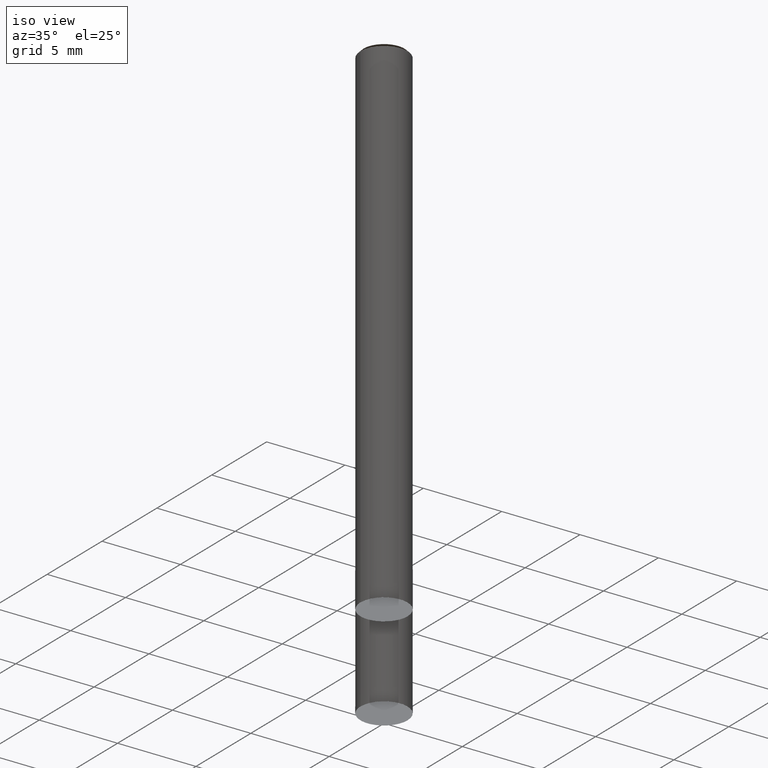
[diagram: clean part render]
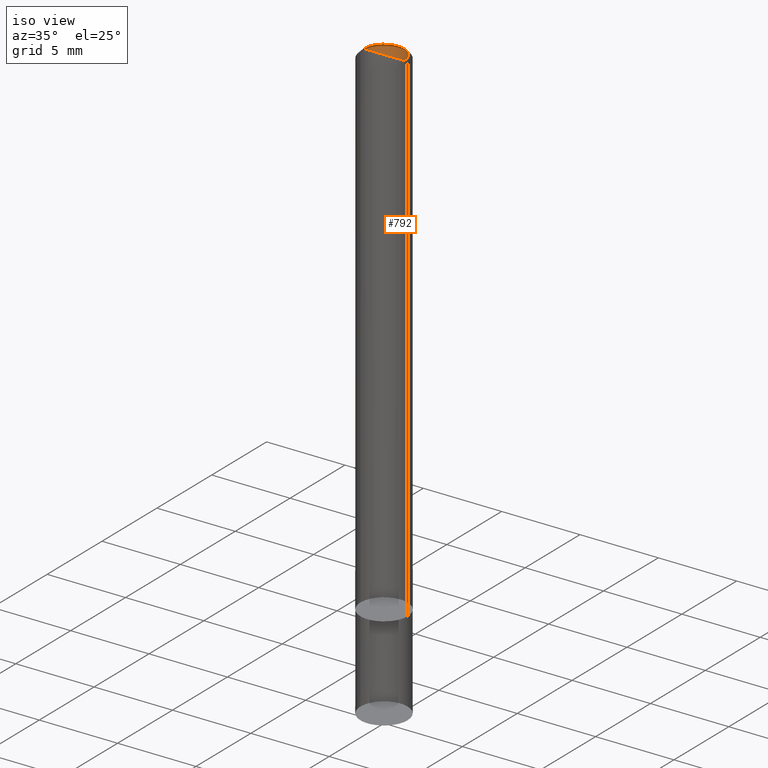
[diagram: same view with one face highlighted and labeled with its STEP entity id]
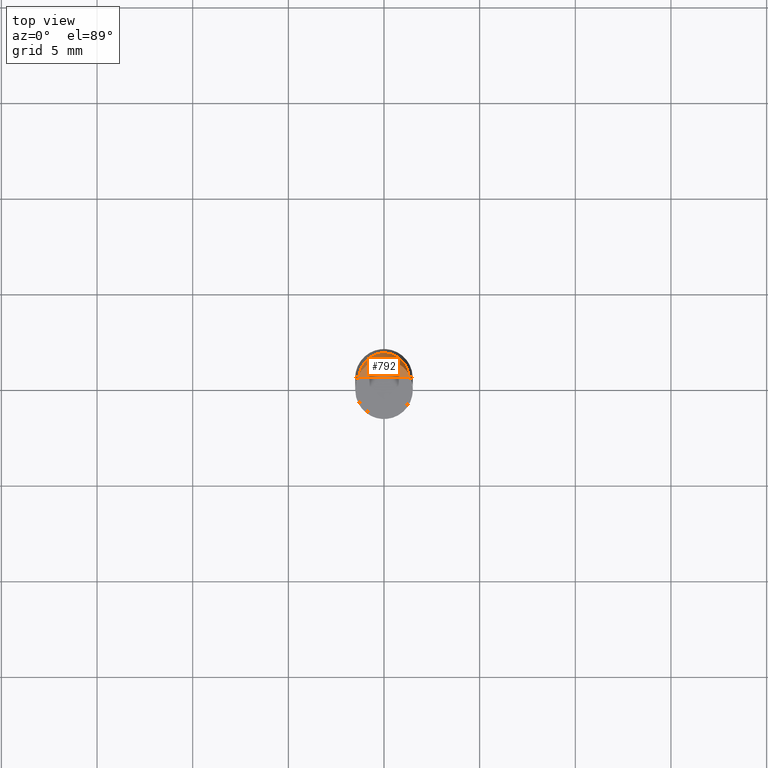
[diagram: same view with one face highlighted and labeled with its STEP entity id]
A machine part, iso view. The second image highlights one B-rep face of the part: STEP entity #792.
A second angle (top view) of the same face is appended — the face is thin or edge-on in the first view.
In plain terms, the highlighted face is a freeform B-spline surface patch.
Its self-contained STEP definition (entity closure, byte-faithful):
#595=CARTESIAN_POINT('',(1.3,0.0,32.0));
#596=CARTESIAN_POINT('',(1.3,1.3,32.0));
#597=CARTESIAN_POINT('',(0.0,1.3,32.0));
#598=CARTESIAN_POINT('',(-1.3,1.3,32.0));
#599=CARTESIAN_POINT('',(-1.3,0.0,32.0));
#600=CARTESIAN_POINT('',(0.0,0.0,32.0));
#777=(
BOUNDED_SURFACE()
B_SPLINE_SURFACE(1,2,(
(#595,#596,#597,#598,#599),
(#600,#600,#600,#600,#600)
), .UNSPECIFIED.,.F.,.F.,.F.)
B_SPLINE_SURFACE_WITH_KNOTS((2,2),(3,2,3),(
0.0,1.0),(
0.0,0.5,1.0), .UNSPECIFIED.)
GEOMETRIC_REPRESENTATION_ITEM()
RATIONAL_B_SPLINE_SURFACE(((1.0,0.707106781187,1.0,0.707106781187,1.0),
(1.0,0.707106781187,1.0,0.707106781187,1.0)
))
REPRESENTATION_ITEM('')
SURFACE()
);
#778=(
BOUNDED_CURVE()
B_SPLINE_CURVE(2,(#599,#598,#597,#596,#595),.UNSPECIFIED.,.F.,.F.)
B_SPLINE_CURVE_WITH_KNOTS((3,2,3),
(0.0,0.5,1.0),.UNSPECIFIED.)
CURVE()
GEOMETRIC_REPRESENTATION_ITEM()
RATIONAL_B_SPLINE_CURVE((1.0,0.707106781187,1.0,0.707106781187,1.0))
REPRESENTATION_ITEM('')
);
#779=(
BOUNDED_CURVE()
B_SPLINE_CURVE(1,(#595,#600),.UNSPECIFIED.,.F.,.F.)
B_SPLINE_CURVE_WITH_KNOTS((2,2),
(0.0,1.0),.UNSPECIFIED.)
CURVE()
GEOMETRIC_REPRESENTATION_ITEM()
RATIONAL_B_SPLINE_CURVE((1.0,1.0))
REPRESENTATION_ITEM('')
);
#780=(
BOUNDED_CURVE()
B_SPLINE_CURVE(1,(#600,#599),.UNSPECIFIED.,.F.,.F.)
B_SPLINE_CURVE_WITH_KNOTS((2,2),
(0.0,1.0),.UNSPECIFIED.)
CURVE()
GEOMETRIC_REPRESENTATION_ITEM()
RATIONAL_B_SPLINE_CURVE((1.0,1.0))
REPRESENTATION_ITEM('')
);
#781=VERTEX_POINT('',#595);
#782=VERTEX_POINT('',#599);
#783=VERTEX_POINT('',#600);
#784=EDGE_CURVE('',#782,#781,#778,.T.);
#785=EDGE_CURVE('',#781,#783,#779,.T.);
#786=EDGE_CURVE('',#783,#782,#780,.T.);
#787=ORIENTED_EDGE('',*,*,#784,.T.);
#788=ORIENTED_EDGE('',*,*,#785,.T.);
#789=ORIENTED_EDGE('',*,*,#786,.T.);
#790=EDGE_LOOP('',(#787,#788,#789));
#791=FACE_OUTER_BOUND('',#790,.T.);
#792=ADVANCED_FACE('',(#791),#777,.T.);